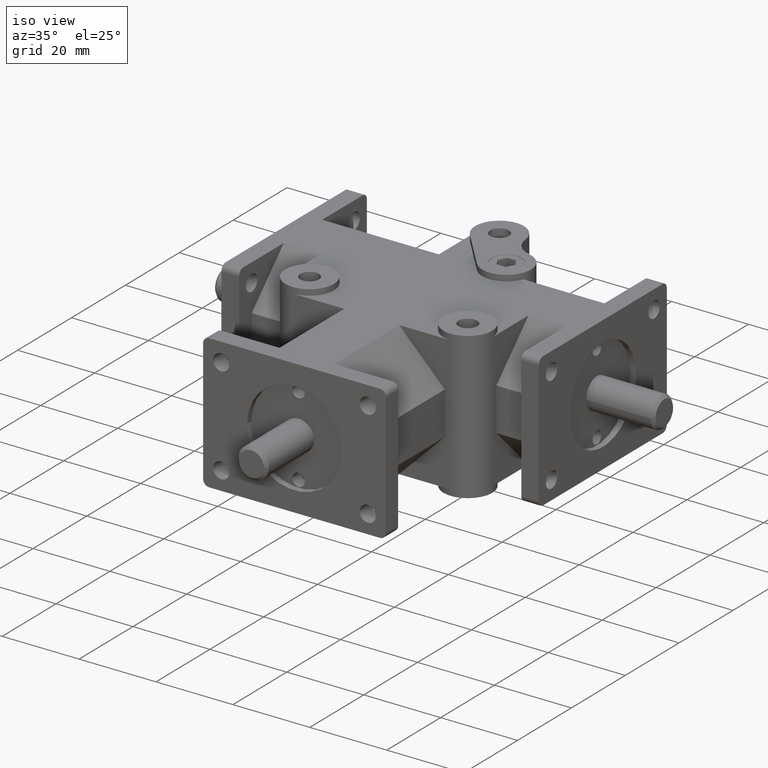
[diagram: clean part render]
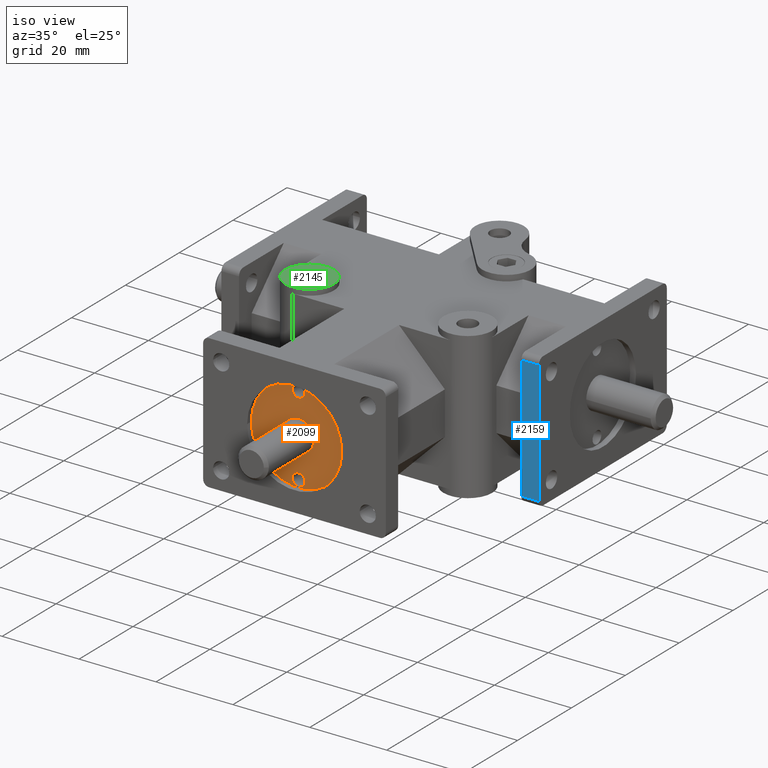
[diagram: same view with three faces highlighted in distinct colors, each labeled with its STEP entity id]
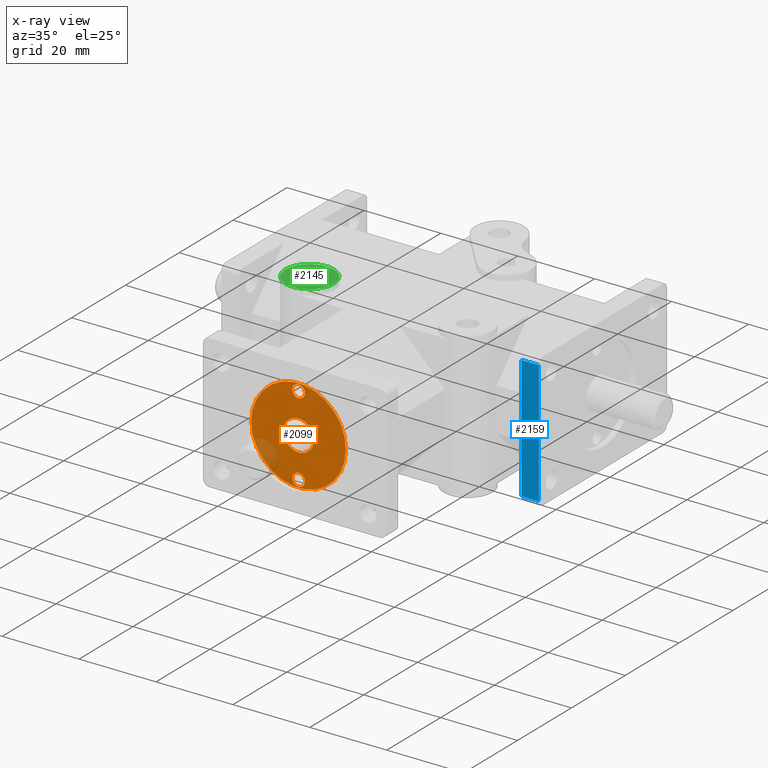
[diagram: x-ray of the same camera — body ghosted, the three highlighted faces saturated]
A machine part, iso view with three faces highlighted in distinct colors.
The next image is the same camera in x-ray (body ghosted, the three faces saturated) — at least one of them is partly hidden behind the body in this view.
Their STEP definitions:

[orange] entity #2099 — the highlighted planar face has unit normal (0, 1, 0).
#23=FACE_BOUND('',#287,.T.);
#24=FACE_BOUND('',#288,.T.);
#25=FACE_BOUND('',#289,.T.);
#76=PLANE('',#2266);
#161=FACE_OUTER_BOUND('',#286,.T.);
#286=EDGE_LOOP('',(#1511));
#287=EDGE_LOOP('',(#1512));
#288=EDGE_LOOP('',(#1513));
#289=EDGE_LOOP('',(#1514));
#428=CIRCLE('',#2227,1.6256);
#430=CIRCLE('',#2231,1.6256);
#439=CIRCLE('',#2246,4.);
#449=CIRCLE('',#2265,12.3063);
#929=VERTEX_POINT('',#3134);
#931=VERTEX_POINT('',#3141);
#940=VERTEX_POINT('',#3169);
#950=VERTEX_POINT('',#3203);
#1135=EDGE_CURVE('',#929,#929,#428,.T.);
#1138=EDGE_CURVE('',#931,#931,#430,.T.);
#1152=EDGE_CURVE('',#940,#940,#439,.T.);
#1167=EDGE_CURVE('',#950,#950,#449,.T.);
#1511=ORIENTED_EDGE('',*,*,#1167,.T.);
#1512=ORIENTED_EDGE('',*,*,#1135,.T.);
#1513=ORIENTED_EDGE('',*,*,#1138,.T.);
#1514=ORIENTED_EDGE('',*,*,#1152,.T.);
#2099=ADVANCED_FACE('',(#161,#23,#24,#25),#76,.F.);
#2227=AXIS2_PLACEMENT_3D('',#3135,#2488,#2489);
#2231=AXIS2_PLACEMENT_3D('',#3142,#2497,#2498);
#2246=AXIS2_PLACEMENT_3D('',#3171,#2532,#2533);
#2265=AXIS2_PLACEMENT_3D('',#3205,#2575,#2576);
#2266=AXIS2_PLACEMENT_3D('',#3206,#2577,#2578);
#2488=DIRECTION('center_axis',(0.,1.,0.));
#2489=DIRECTION('ref_axis',(1.,0.,0.));
#2497=DIRECTION('center_axis',(0.,1.,0.));
#2498=DIRECTION('ref_axis',(1.,0.,0.));
#2532=DIRECTION('center_axis',(0.,1.,0.));
#2533=DIRECTION('ref_axis',(1.,0.,0.));
#2575=DIRECTION('center_axis',(0.,-1.,0.));
#2576=DIRECTION('ref_axis',(1.,0.,0.));
#2577=DIRECTION('center_axis',(0.,1.,0.));
#2578=DIRECTION('ref_axis',(0.,0.,-1.));
#3134=CARTESIAN_POINT('',(-1.6256,1.524,10.414));
#3135=CARTESIAN_POINT('Origin',(3.18826264217656E-15,1.524,10.414));
#3141=CARTESIAN_POINT('',(-1.6256,1.524,-10.414));
#3142=CARTESIAN_POINT('Origin',(-1.91295758530594E-15,1.524,-10.414));
#3169=CARTESIAN_POINT('',(-4.,1.524,-4.89858719658941E-16));
#3171=CARTESIAN_POINT('Origin',(0.,1.524,0.));
#3203=CARTESIAN_POINT('',(-12.3063,1.524,1.50708709043471E-15));
#3205=CARTESIAN_POINT('Origin',(0.,1.524,0.));
#3206=CARTESIAN_POINT('Origin',(1.11875454545454,1.524,1.10534099037544E-16));

[blue] entity #2159 — the highlighted planar face has unit normal (0, -1, 0).
#114=PLANE('',#2389);
#221=FACE_OUTER_BOUND('',#373,.T.);
#373=EDGE_LOOP('',(#1867,#1868,#1869,#1870));
#564=LINE('',#3305,#759);
#565=LINE('',#3311,#760);
#605=LINE('',#3407,#800);
#693=LINE('',#3629,#888);
#759=VECTOR('',#2666,1.);
#760=VECTOR('',#2671,1.);
#800=VECTOR('',#2749,1.);
#888=VECTOR('',#2975,1.);
#991=VERTEX_POINT('',#3298);
#994=VERTEX_POINT('',#3303);
#996=VERTEX_POINT('',#3308);
#997=VERTEX_POINT('',#3310);
#1211=EDGE_CURVE('',#994,#991,#564,.T.);
#1213=EDGE_CURVE('',#996,#997,#565,.T.);
#1267=EDGE_CURVE('',#997,#994,#605,.T.);
#1381=EDGE_CURVE('',#996,#991,#693,.T.);
#1867=ORIENTED_EDGE('',*,*,#1211,.F.);
#1868=ORIENTED_EDGE('',*,*,#1267,.F.);
#1869=ORIENTED_EDGE('',*,*,#1213,.F.);
#1870=ORIENTED_EDGE('',*,*,#1381,.T.);
#2159=ADVANCED_FACE('',(#221),#114,.T.);
#2389=AXIS2_PLACEMENT_3D('',#3628,#2973,#2974);
#2666=DIRECTION('',(1.,0.,0.));
#2671=DIRECTION('',(-1.,0.,0.));
#2749=DIRECTION('',(0.,0.,1.));
#2973=DIRECTION('center_axis',(0.,-1.,0.));
#2974=DIRECTION('ref_axis',(0.,0.,1.));
#2975=DIRECTION('',(0.,0.,1.));
#3298=CARTESIAN_POINT('',(41.275,31.8135,16.002));
#3303=CARTESIAN_POINT('',(36.703,31.8135,16.002));
#3305=CARTESIAN_POINT('',(20.6375,31.8135,16.002));
#3308=CARTESIAN_POINT('',(41.275,31.8135,-16.002));
#3310=CARTESIAN_POINT('',(36.703,31.8135,-16.002));
#3311=CARTESIAN_POINT('',(20.6375,31.8135,-16.002));
#3407=CARTESIAN_POINT('',(36.703,31.8135,0.));
#3628=CARTESIAN_POINT('Origin',(41.275,31.8135,0.));
#3629=CARTESIAN_POINT('',(41.275,31.8135,0.));

[green] entity #2145 — the highlighted planar face has unit normal (0, 0, 1).
#47=FACE_BOUND('',#357,.T.);
#105=PLANE('',#2370);
#207=FACE_OUTER_BOUND('',#356,.T.);
#356=EDGE_LOOP('',(#1803));
#357=EDGE_LOOP('',(#1804));
#505=CIRCLE('',#2366,6.35);
#508=CIRCLE('',#2371,2.4511);
#1090=VERTEX_POINT('',#3579);
#1093=VERTEX_POINT('',#3590);
#1357=EDGE_CURVE('',#1090,#1090,#505,.T.);
#1363=EDGE_CURVE('',#1093,#1093,#508,.T.);
#1803=ORIENTED_EDGE('',*,*,#1357,.F.);
#1804=ORIENTED_EDGE('',*,*,#1363,.T.);
#2145=ADVANCED_FACE('',(#207,#47),#105,.T.);
#2366=AXIS2_PLACEMENT_3D('',#3580,#2911,#2912);
#2370=AXIS2_PLACEMENT_3D('',#3589,#2922,#2923);
#2371=AXIS2_PLACEMENT_3D('',#3591,#2924,#2925);
#2911=DIRECTION('center_axis',(0.,0.,-1.));
#2912=DIRECTION('ref_axis',(1.,0.,0.));
#2922=DIRECTION('center_axis',(0.,0.,1.));
#2923=DIRECTION('ref_axis',(-1.,0.,0.));
#2924=DIRECTION('center_axis',(0.,0.,-1.));
#2925=DIRECTION('ref_axis',(1.,0.,0.));
#3579=CARTESIAN_POINT('',(-26.924,34.9885,19.05));
#3580=CARTESIAN_POINT('Origin',(-20.574,34.9885,19.05));
#3589=CARTESIAN_POINT('Origin',(-19.9967272727273,34.9885,19.05));
#3590=CARTESIAN_POINT('',(-23.0251,34.9885,19.05));
#3591=CARTESIAN_POINT('Origin',(-20.574,34.9885,19.05));